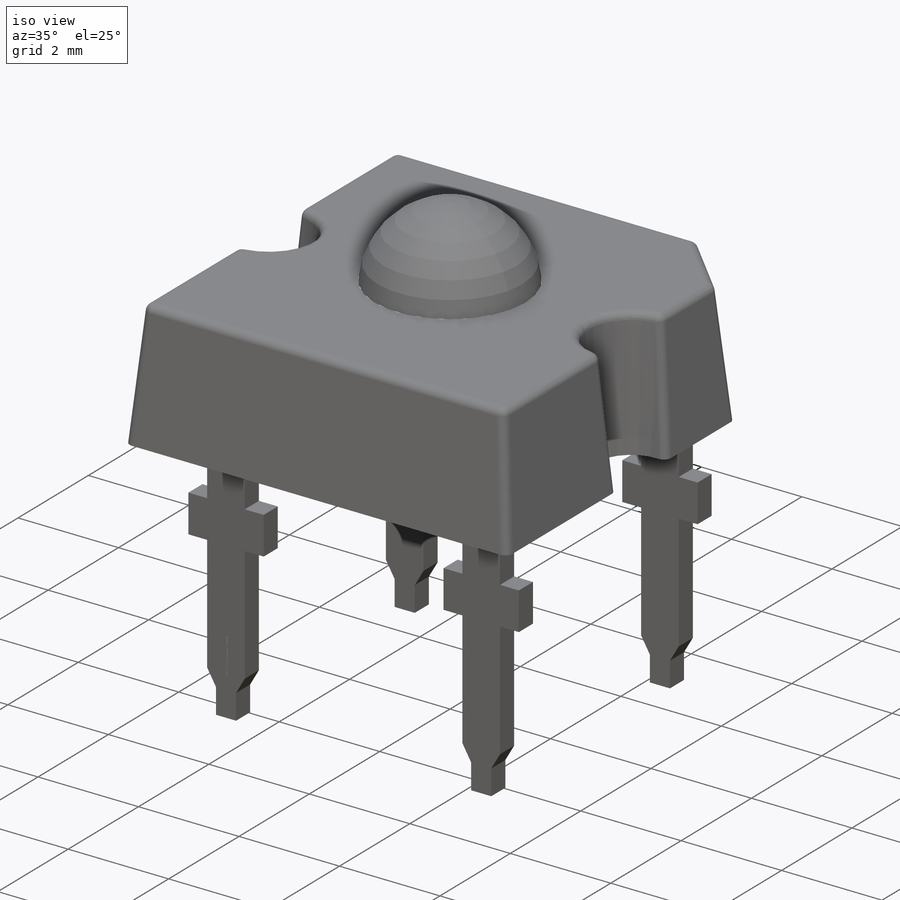
[diagram: iso view]
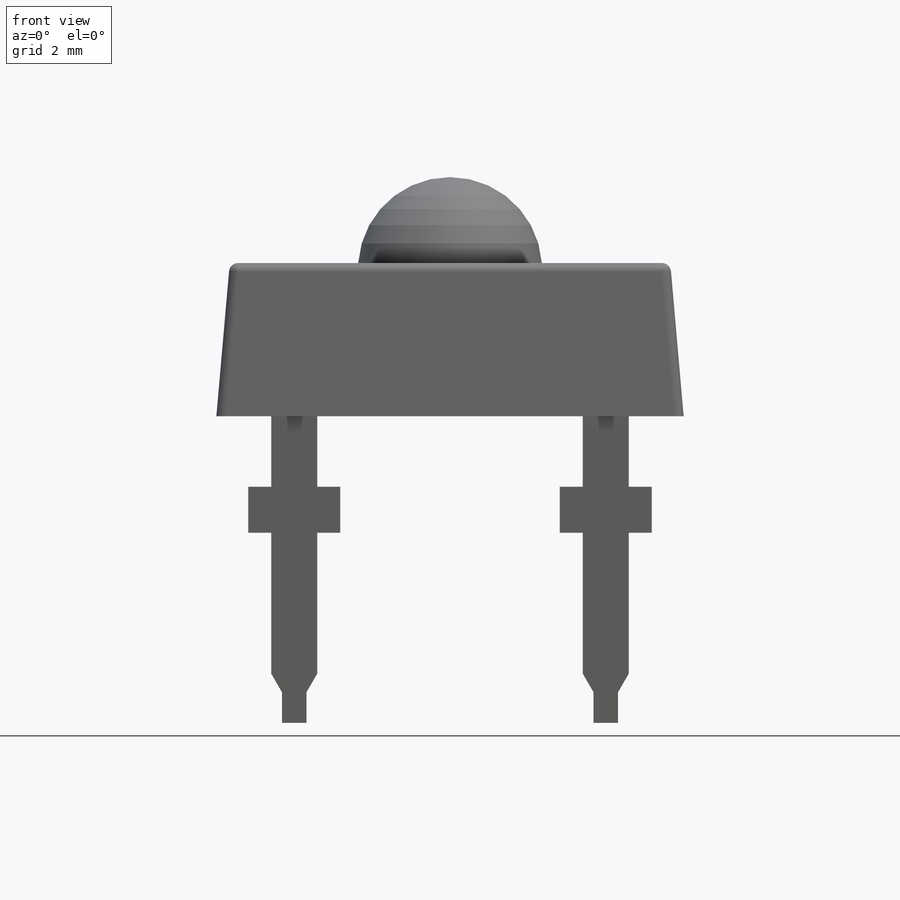
[diagram: front view]
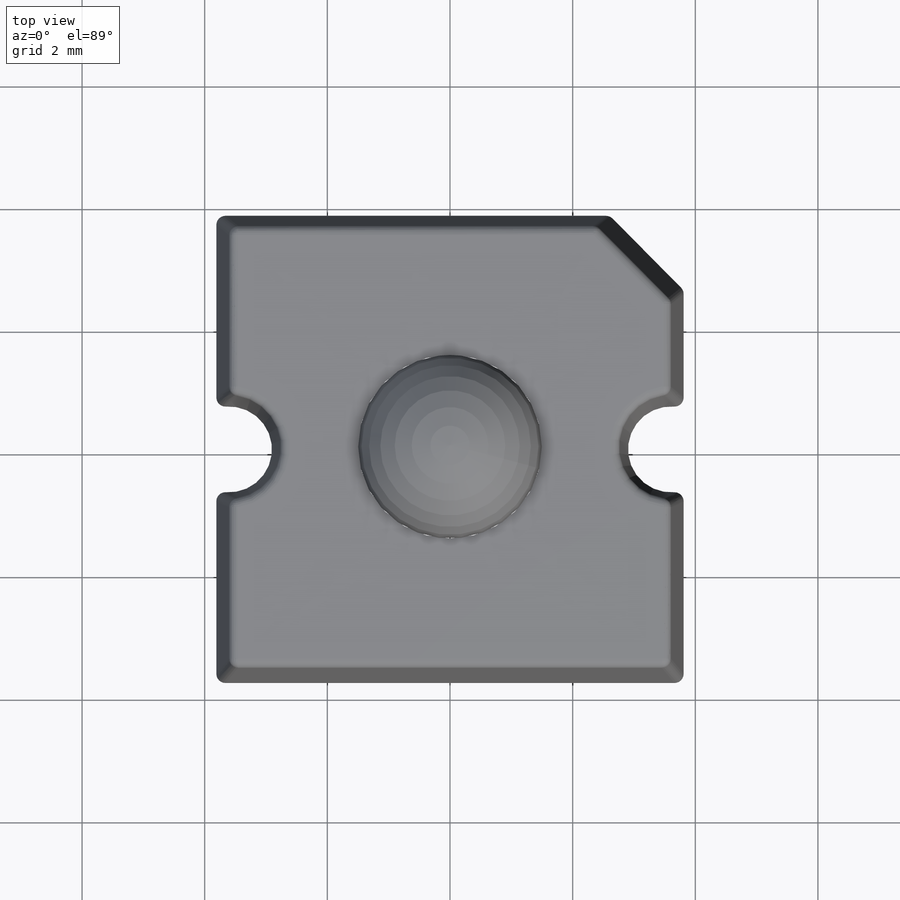
[diagram: top view]
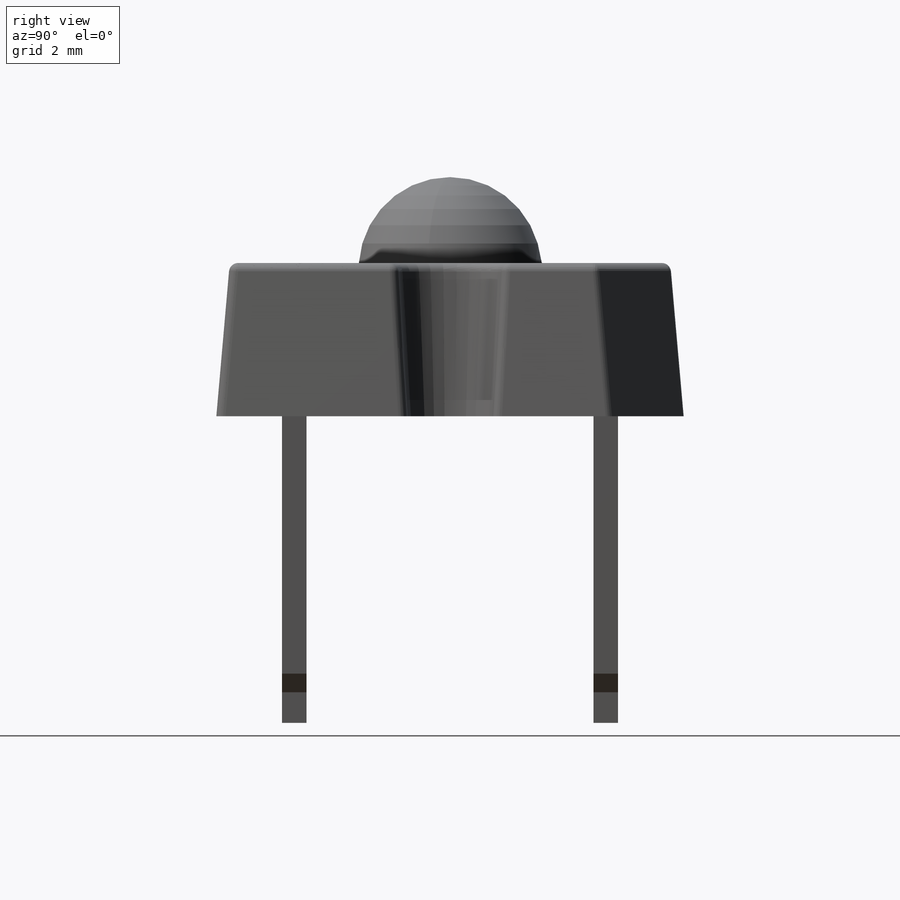
[diagram: right view]
SOLIDWORKS PART (.sldprt)
format: sldprt  version: not decoded by parser v0  size: 728,064 bytes
history: native  units: mm
features: sketch x7, extrude x3, cut_extrude x3, plane x2, fillet x2, material x1, revolve x1, chamfer x1 (+11 scaffold rows collapsed)
feature tree (31):
  scaffold x11  (default folders/planes/origin — collapsed)
  material  "Material <not specified>"
  sketch  "Sketch1"  dims[c1.D3=3.0mm c1.D1=2.5mm c1.D2=7.6mm c1.D4=3.9mm c2.D2=7.62mm c2.D5=2.5mm c3.D5=90.0deg c3.D1=2.5mm c4.D5=~8.498605mm c5.D5=~174.248259deg c6.D5=~8.498605mm c7.D5=5.0deg c7.D6=~8.498605mm c8.D6=~162.723447deg c9.D6=~2.618686mm c10.D6=5.0deg c10.D7=1.4mm]
  extrude  "Extrude1"  Depth=7.62mm
  revolve  "Revolve1"  [1 undecoded]
  sketch  "Sketch1<3>"  dims[D1=360.0deg]
  plane  "Plane1"  Offset=2.54mm
  sketch  "Sketch2"  dims[c1.D1=5.0mm c1.D2=0.4mm c1.D3=0.75mm c1.D4=0.5mm c1.D5=~0.809189mm c2.D5=~102.489801deg c3.D5=~0.809189mm c4.D5=60.0deg c4.D6=5.08mm c4.D7=1.5mm c4.D8=6.94mm c4.D9=0.75mm c5.D8=4.4mm]
  plane  "Plane2"  Offset=2.54mm
  sketch  "Sketch3"
  extrude  "Extrude2"  Depth=0.4mm
  extrude  "Extrude3"  Depth=0.4mm
  sketch  "Sketch11"  dims[c1.D1=2.5mm c2.D1=5.0deg]
  cut_extrude  "Cut-Extrude6"  Depth=7.62mm
  chamfer  "Chamfer1"  Distance=1.2mm Angle=45deg
  fillet  "Fillet1"  Radius=0.15mm
  sketch  "Sketch13"  dims[D1=0.7mm]
  cut_extrude  "Cut-Extrude7"  [1 undecoded]
  fillet  "Fillet2"  Radius=0.15mm
  sketch  "Sketch6"
  cut_extrude  "Cut-Extrude4"  Depth=0.01mm
decode coverage: 13 of 17 modeling features carry decoded parameters
note: ~ marks probable driven/reference dimensions
note: 2 parameter values undecoded
note: suppression state not decoded; provenance and decode notes live in map.json
